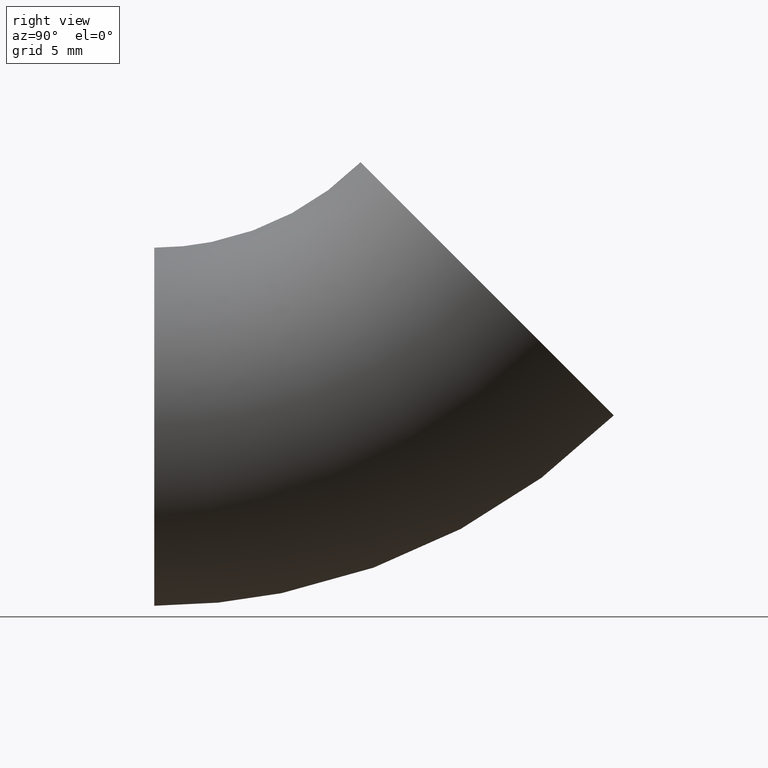
[diagram: clean part render]
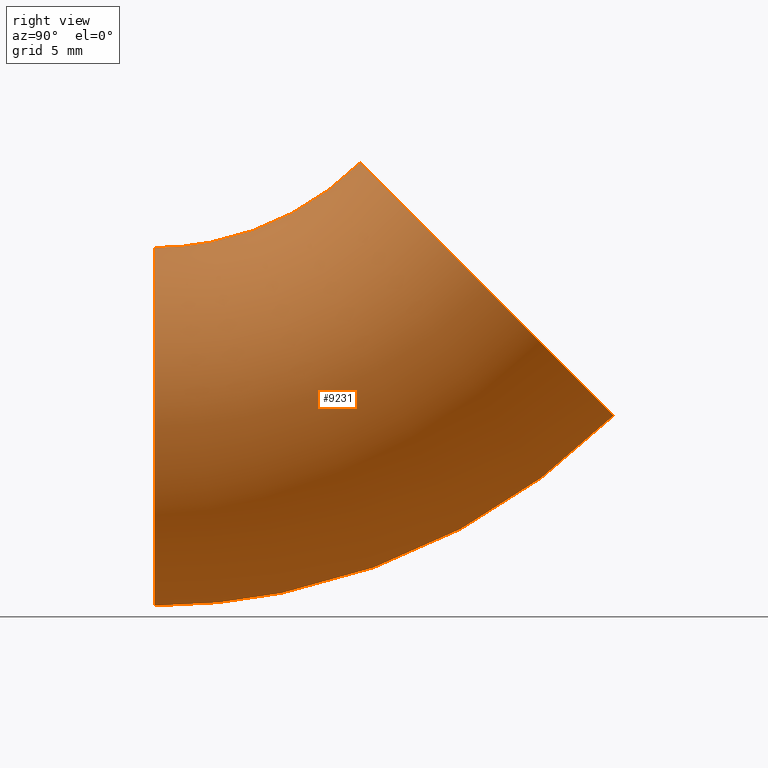
[diagram: same view with one face highlighted and labeled with its STEP entity id]
A machine part, right view. The second image highlights one B-rep face of the part: STEP entity #9231.
In plain terms, the highlighted toroidal blend (fillet) surface has major radius 28 mm and minor (blend) radius 10.65 mm.
Its self-contained STEP definition (entity closure, byte-faithful):
#154 = ORIENTED_EDGE ( 'NONE', *, *, #2390, .F. ) ;
#441 = AXIS2_PLACEMENT_3D ( 'NONE', #8387, #7826, #9445 ) ;
#633 = DIRECTION ( 'NONE',  ( 0.000000000000000000, -0.7071067811865476838, 0.7071067811865473507 ) ) ;
#1407 = CARTESIAN_POINT ( 'NONE',  ( 0.000000000000000000, 12.26830265358660377, -12.26830265358659666 ) ) ;
#1630 = FACE_OUTER_BOUND ( 'NONE', #8033, .T. ) ;
#2390 = EDGE_CURVE ( 'NONE', #5191, #5191, #7268, .T. ) ;
#3029 = CARTESIAN_POINT ( 'NONE',  ( 0.000000000000000000, 19.79898987322333781, -19.79898987322332715 ) ) ;
#4210 = TOROIDAL_SURFACE ( 'NONE', #10406, 28.00000000000000000, 10.65000000000000036 ) ;
#4750 = EDGE_CURVE ( 'NONE', #9023, #9023, #7210, .T. ) ;
#5108 = EDGE_LOOP ( 'NONE', ( #6984 ) ) ;
#5191 = VERTEX_POINT ( 'NONE', #1407 ) ;
#5880 = CARTESIAN_POINT ( 'NONE',  ( 0.000000000000000000, 0.000000000000000000, 0.000000000000000000 ) ) ;
#6632 = DIRECTION ( 'NONE',  ( -1.000000000000000000, -0.000000000000000000, -0.000000000000000000 ) ) ;
#6984 = ORIENTED_EDGE ( 'NONE', *, *, #4750, .T. ) ;
#7210 = CIRCLE ( 'NONE', #441, 10.65000000000000036 ) ;
#7268 = CIRCLE ( 'NONE', #8395, 10.65000000000000213 ) ;
#7823 = FACE_OUTER_BOUND ( 'NONE', #5108, .T. ) ;
#7826 = DIRECTION ( 'NONE',  ( 0.000000000000000000, 1.000000000000000000, 0.000000000000000000 ) ) ;
#8033 = EDGE_LOOP ( 'NONE', ( #154 ) ) ;
#8053 = DIRECTION ( 'NONE',  ( 0.000000000000000000, 0.7071067811865473507, 0.7071067811865476838 ) ) ;
#8387 = CARTESIAN_POINT ( 'NONE',  ( 0.000000000000000000, 0.000000000000000000, -28.00000000000000000 ) ) ;
#8395 = AXIS2_PLACEMENT_3D ( 'NONE', #3029, #8053, #633 ) ;
#9023 = VERTEX_POINT ( 'NONE', #10337 ) ;
#9231 = ADVANCED_FACE ( 'NONE', ( #1630, #7823 ), #4210, .T. ) ;
#9445 = DIRECTION ( 'NONE',  ( 0.000000000000000000, 0.000000000000000000, 1.000000000000000000 ) ) ;
#9928 = DIRECTION ( 'NONE',  ( 0.000000000000000000, 0.000000000000000000, 1.000000000000000000 ) ) ;
#10337 = CARTESIAN_POINT ( 'NONE',  ( 0.000000000000000000, 0.000000000000000000, -17.35000000000000142 ) ) ;
#10406 = AXIS2_PLACEMENT_3D ( 'NONE', #5880, #6632, #9928 ) ;